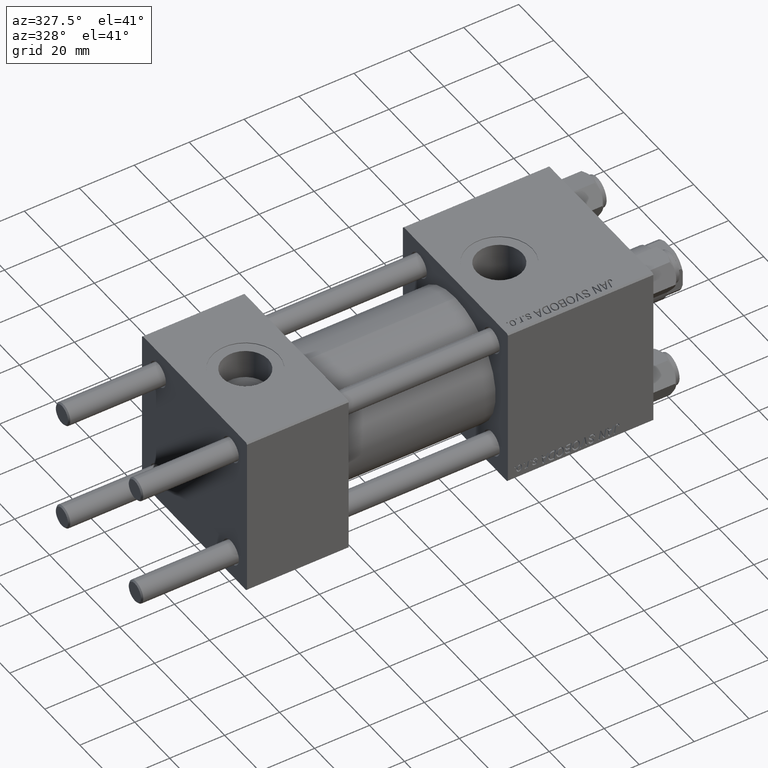
[diagram: clean part render]
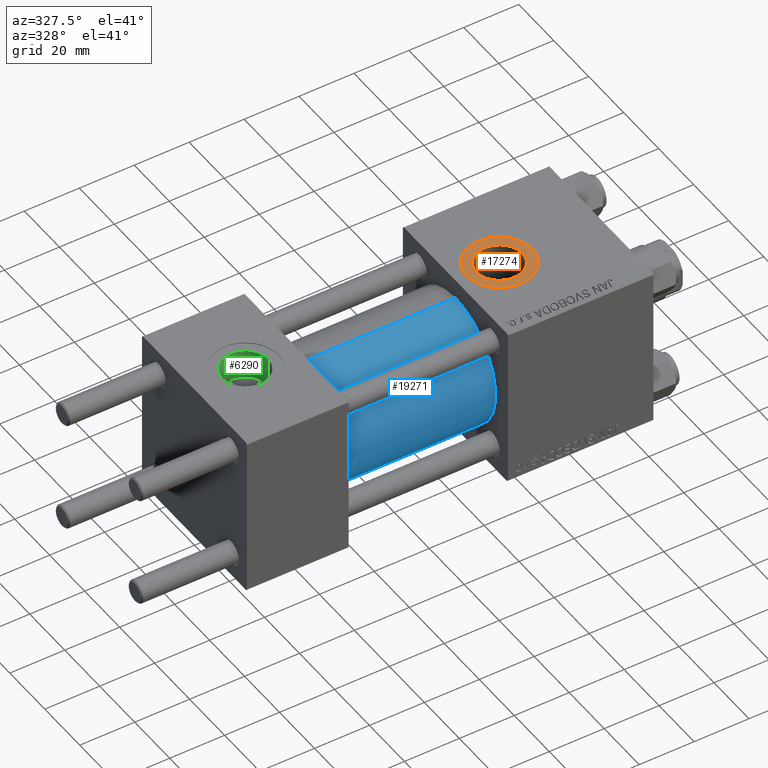
[diagram: same view with three faces highlighted in distinct colors, each labeled with its STEP entity id]
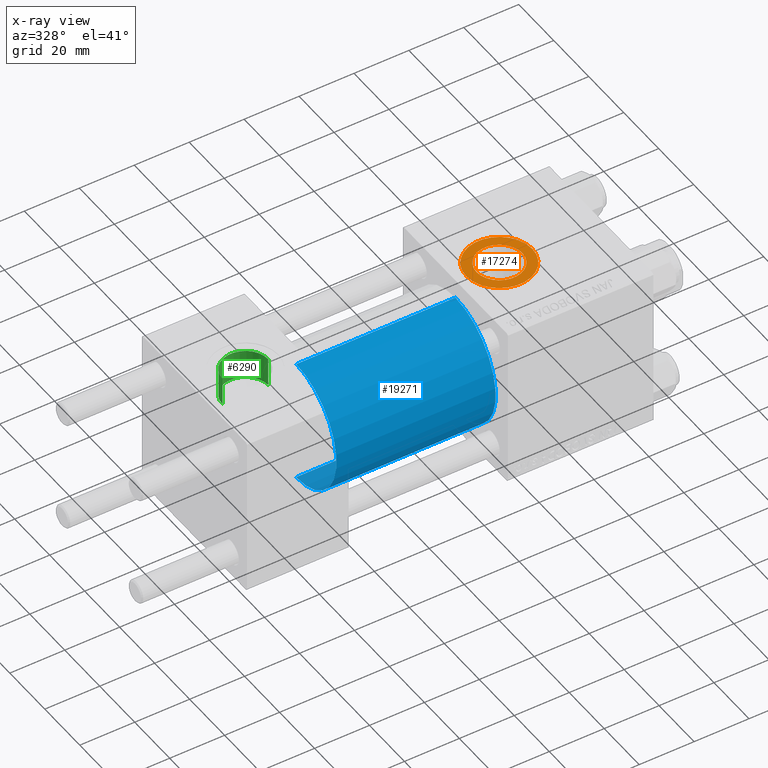
[diagram: x-ray of the same camera — body ghosted, the three highlighted faces saturated]
A machine part, auxiliary view with three faces highlighted in distinct colors.
The next image is the same camera in x-ray (body ghosted, the three faces saturated) — at least one of them is partly hidden behind the body in this view.
Their STEP definitions:

[orange] entity #17274 — the highlighted planar face has unit normal (0, 0, 1).
#87 = FACE_BOUND ( 'NONE', #16427, .T. ) ;
#463 = CARTESIAN_POINT ( 'NONE',  ( 99.00000000000000000, -1.999870792976792017E-15, 29.79999999999999716 ) ) ;
#1519 = DIRECTION ( 'NONE',  ( -0.000000000000000000, -0.000000000000000000, -1.000000000000000000 ) ) ;
#2082 = ORIENTED_EDGE ( 'NONE', *, *, #33465, .T. ) ;
#2379 = EDGE_CURVE ( 'NONE', #41623, #41061, #2391, .T. ) ;
#2391 = CIRCLE ( 'NONE', #30665, 8.330000000000003624 ) ;
#5799 = DIRECTION ( 'NONE',  ( -0.000000000000000000, -0.000000000000000000, -1.000000000000000000 ) ) ;
#9380 = DIRECTION ( 'NONE',  ( 1.000000000000000000, 0.000000000000000000, 0.000000000000000000 ) ) ;
#10417 = ORIENTED_EDGE ( 'NONE', *, *, #2379, .T. ) ;
#15109 = EDGE_CURVE ( 'NONE', #41061, #41623, #43099, .T. ) ;
#15517 = FACE_OUTER_BOUND ( 'NONE', #17781, .T. ) ;
#15715 = ORIENTED_EDGE ( 'NONE', *, *, #27701, .T. ) ;
#16427 = EDGE_LOOP ( 'NONE', ( #31190, #10417 ) ) ;
#16697 = CARTESIAN_POINT ( 'NONE',  ( 111.0000000000000000, -3.469446951953613794E-15, 29.79999999999999716 ) ) ;
#16729 = DIRECTION ( 'NONE',  ( 0.000000000000000000, 0.000000000000000000, 1.000000000000000000 ) ) ;
#17274 = ADVANCED_FACE ( 'NONE', ( #87, #15517 ), #30450, .T. ) ;
#17781 = EDGE_LOOP ( 'NONE', ( #2082, #15715 ) ) ;
#17994 = VERTEX_POINT ( 'NONE', #463 ) ;
#18563 = DIRECTION ( 'NONE',  ( 1.000000000000000000, 0.000000000000000000, -0.000000000000000000 ) ) ;
#21273 = AXIS2_PLACEMENT_3D ( 'NONE', #36902, #5799, #33099 ) ;
#27701 = EDGE_CURVE ( 'NONE', #17994, #48693, #40189, .T. ) ;
#29816 = AXIS2_PLACEMENT_3D ( 'NONE', #32408, #16729, #9380 ) ;
#30450 = PLANE ( 'NONE',  #47238 ) ;
#30665 = AXIS2_PLACEMENT_3D ( 'NONE', #39983, #1519, #35685 ) ;
#31190 = ORIENTED_EDGE ( 'NONE', *, *, #15109, .T. ) ;
#32408 = CARTESIAN_POINT ( 'NONE',  ( 111.0000000000000000, -3.469446951953613794E-15, 29.79999999999999716 ) ) ;
#33099 = DIRECTION ( 'NONE',  ( 1.000000000000000000, 0.000000000000000000, 0.000000000000000000 ) ) ;
#33465 = EDGE_CURVE ( 'NONE', #48693, #17994, #38700, .T. ) ;
#33641 = CARTESIAN_POINT ( 'NONE',  ( 119.3300000000000125, -2.449316168263869821E-15, 29.79999999999999716 ) ) ;
#35175 = DIRECTION ( 'NONE',  ( 0.000000000000000000, 0.000000000000000000, 1.000000000000000000 ) ) ;
#35685 = DIRECTION ( 'NONE',  ( 1.000000000000000000, 0.000000000000000000, 0.000000000000000000 ) ) ;
#36261 = CARTESIAN_POINT ( 'NONE',  ( 102.6700000000000017, -3.469446951953613794E-15, 29.79999999999999716 ) ) ;
#36902 = CARTESIAN_POINT ( 'NONE',  ( 111.0000000000000000, -3.469446951953613794E-15, 29.79999999999999716 ) ) ;
#37206 = CARTESIAN_POINT ( 'NONE',  ( 123.0000000000000000, -3.469446951953613794E-15, 29.79999999999999716 ) ) ;
#38300 = DIRECTION ( 'NONE',  ( 0.000000000000000000, 0.000000000000000000, 1.000000000000000000 ) ) ;
#38700 = CIRCLE ( 'NONE', #29816, 11.99999999999999645 ) ;
#38991 = DIRECTION ( 'NONE',  ( 1.000000000000000000, 0.000000000000000000, 0.000000000000000000 ) ) ;
#39983 = CARTESIAN_POINT ( 'NONE',  ( 111.0000000000000000, -3.469446951953613794E-15, 29.79999999999999716 ) ) ;
#40189 = CIRCLE ( 'NONE', #47441, 11.99999999999999645 ) ;
#41061 = VERTEX_POINT ( 'NONE', #36261 ) ;
#41623 = VERTEX_POINT ( 'NONE', #33641 ) ;
#43099 = CIRCLE ( 'NONE', #21273, 8.330000000000003624 ) ;
#46395 = CARTESIAN_POINT ( 'NONE',  ( 111.0000000000000000, -3.469446951953613794E-15, 29.79999999999999716 ) ) ;
#47238 = AXIS2_PLACEMENT_3D ( 'NONE', #46395, #38300, #18563 ) ;
#47441 = AXIS2_PLACEMENT_3D ( 'NONE', #16697, #35175, #38991 ) ;
#48693 = VERTEX_POINT ( 'NONE', #37206 ) ;

[blue] entity #19271 — the highlighted cylindrical surface (partial cylindrical patch) has radius 23 mm, axis along (-1, -0, -0).
#59 = CARTESIAN_POINT ( 'NONE',  ( 95.00000000000000000, 0.000000000000000000, 23.00000000000000000 ) ) ;
#414 = DIRECTION ( 'NONE',  ( 1.000000000000000000, 0.000000000000000000, 0.000000000000000000 ) ) ;
#871 = CARTESIAN_POINT ( 'NONE',  ( 37.00000000000000000, 0.000000000000000000, 0.000000000000000000 ) ) ;
#1164 = CARTESIAN_POINT ( 'NONE',  ( 37.00000000000000000, 2.816687638038911957E-15, -23.00000000000000000 ) ) ;
#1176 = DIRECTION ( 'NONE',  ( -1.000000000000000000, -0.000000000000000000, -0.000000000000000000 ) ) ;
#3700 = ORIENTED_EDGE ( 'NONE', *, *, #49554, .T. ) ;
#4083 = EDGE_LOOP ( 'NONE', ( #25712, #7459, #9807, #3700 ) ) ;
#4475 = CARTESIAN_POINT ( 'NONE',  ( 95.00000000000000000, 0.000000000000000000, 0.000000000000000000 ) ) ;
#4917 = DIRECTION ( 'NONE',  ( 0.000000000000000000, 0.000000000000000000, 1.000000000000000000 ) ) ;
#5031 = AXIS2_PLACEMENT_3D ( 'NONE', #4475, #414, #8006 ) ;
#5992 = VECTOR ( 'NONE', #22035, 1000.000000000000000 ) ;
#7459 = ORIENTED_EDGE ( 'NONE', *, *, #11630, .F. ) ;
#8006 = DIRECTION ( 'NONE',  ( 0.000000000000000000, 0.000000000000000000, -1.000000000000000000 ) ) ;
#8332 = VERTEX_POINT ( 'NONE', #1164 ) ;
#9114 = CARTESIAN_POINT ( 'NONE',  ( 95.00000000000000000, 2.816687638038911957E-15, -23.00000000000000000 ) ) ;
#9807 = ORIENTED_EDGE ( 'NONE', *, *, #15519, .T. ) ;
#11135 = CARTESIAN_POINT ( 'NONE',  ( 95.00000000000000000, 2.816687638038911957E-15, -23.00000000000000000 ) ) ;
#11630 = EDGE_CURVE ( 'NONE', #15903, #42302, #12271, .T. ) ;
#12271 = CIRCLE ( 'NONE', #5031, 23.00000000000000000 ) ;
#13996 = VECTOR ( 'NONE', #29732, 1000.000000000000000 ) ;
#14141 = AXIS2_PLACEMENT_3D ( 'NONE', #35836, #1176, #32026 ) ;
#15519 = EDGE_CURVE ( 'NONE', #15903, #25713, #44690, .T. ) ;
#15903 = VERTEX_POINT ( 'NONE', #59 ) ;
#17025 = EDGE_CURVE ( 'NONE', #42302, #8332, #37715, .T. ) ;
#19271 = ADVANCED_FACE ( 'NONE', ( #29237 ), #24189, .T. ) ;
#22035 = DIRECTION ( 'NONE',  ( -1.000000000000000000, -0.000000000000000000, -0.000000000000000000 ) ) ;
#24189 = CYLINDRICAL_SURFACE ( 'NONE', #14141, 23.00000000000000000 ) ;
#24952 = CARTESIAN_POINT ( 'NONE',  ( 95.00000000000000000, 0.000000000000000000, 23.00000000000000000 ) ) ;
#25712 = ORIENTED_EDGE ( 'NONE', *, *, #17025, .F. ) ;
#25713 = VERTEX_POINT ( 'NONE', #43077 ) ;
#29237 = FACE_OUTER_BOUND ( 'NONE', #4083, .T. ) ;
#29732 = DIRECTION ( 'NONE',  ( -1.000000000000000000, -0.000000000000000000, -0.000000000000000000 ) ) ;
#32026 = DIRECTION ( 'NONE',  ( 0.000000000000000000, 0.000000000000000000, 1.000000000000000000 ) ) ;
#35836 = CARTESIAN_POINT ( 'NONE',  ( 95.00000000000000000, 0.000000000000000000, 0.000000000000000000 ) ) ;
#37715 = LINE ( 'NONE', #11135, #5992 ) ;
#39584 = DIRECTION ( 'NONE',  ( 1.000000000000000000, -0.000000000000000000, 0.000000000000000000 ) ) ;
#42302 = VERTEX_POINT ( 'NONE', #9114 ) ;
#43077 = CARTESIAN_POINT ( 'NONE',  ( 37.00000000000000000, 0.000000000000000000, 23.00000000000000000 ) ) ;
#44690 = LINE ( 'NONE', #24952, #13996 ) ;
#45912 = CIRCLE ( 'NONE', #49941, 23.00000000000000000 ) ;
#49554 = EDGE_CURVE ( 'NONE', #25713, #8332, #45912, .T. ) ;
#49941 = AXIS2_PLACEMENT_3D ( 'NONE', #871, #39584, #4917 ) ;

[green] entity #6290 — the highlighted cylindrical surface (edge-blend (fillet) strip) has radius 8.33 mm, axis along (0, 0, 1).
#1302 = EDGE_CURVE ( 'NONE', #49623, #25362, #19228, .T. ) ;
#1382 = CARTESIAN_POINT ( 'NONE',  ( 18.50000000000000000, -3.469446951953614978E-15, 19.19999999999999574 ) ) ;
#2127 = CYLINDRICAL_SURFACE ( 'NONE', #29084, 8.330000000000000071 ) ;
#2234 = EDGE_CURVE ( 'NONE', #25747, #25362, #25009, .T. ) ;
#3427 = CIRCLE ( 'NONE', #9098, 8.330000000000000071 ) ;
#3686 = LINE ( 'NONE', #38603, #8271 ) ;
#4317 = DIRECTION ( 'NONE',  ( -0.000000000000000000, -0.000000000000000000, 1.000000000000000000 ) ) ;
#5688 = FACE_OUTER_BOUND ( 'NONE', #9923, .T. ) ;
#6290 = ADVANCED_FACE ( 'NONE', ( #5688 ), #2127, .F. ) ;
#6618 = DIRECTION ( 'NONE',  ( 0.000000000000000000, 0.000000000000000000, 1.000000000000000000 ) ) ;
#7052 = VERTEX_POINT ( 'NONE', #11337 ) ;
#8096 = CARTESIAN_POINT ( 'NONE',  ( 10.16999999999999638, -2.449316168263869821E-15, 19.19999999999999574 ) ) ;
#8271 = VECTOR ( 'NONE', #43160, 1000.000000000000000 ) ;
#9098 = AXIS2_PLACEMENT_3D ( 'NONE', #33593, #15858, #11556 ) ;
#9923 = EDGE_LOOP ( 'NONE', ( #40746, #46336, #37385, #46972 ) ) ;
#11224 = VECTOR ( 'NONE', #4317, 1000.000000000000000 ) ;
#11337 = CARTESIAN_POINT ( 'NONE',  ( 26.82999999999999829, -3.469446951953614978E-15, 19.19999999999999574 ) ) ;
#11556 = DIRECTION ( 'NONE',  ( 1.000000000000000000, 0.000000000000000000, 0.000000000000000000 ) ) ;
#12476 = EDGE_CURVE ( 'NONE', #7052, #49623, #3427, .T. ) ;
#15858 = DIRECTION ( 'NONE',  ( 0.000000000000000000, 0.000000000000000000, 1.000000000000000000 ) ) ;
#17065 = DIRECTION ( 'NONE',  ( -0.000000000000000000, -0.000000000000000000, 1.000000000000000000 ) ) ;
#17109 = CARTESIAN_POINT ( 'NONE',  ( 10.16999999999999638, -2.449316168263869821E-15, 29.79999999999999716 ) ) ;
#19228 = LINE ( 'NONE', #8096, #11224 ) ;
#21775 = AXIS2_PLACEMENT_3D ( 'NONE', #41292, #6618, #22047 ) ;
#22047 = DIRECTION ( 'NONE',  ( 1.000000000000000000, 0.000000000000000000, 0.000000000000000000 ) ) ;
#25009 = CIRCLE ( 'NONE', #21775, 8.330000000000000071 ) ;
#25362 = VERTEX_POINT ( 'NONE', #17109 ) ;
#25747 = VERTEX_POINT ( 'NONE', #32168 ) ;
#29084 = AXIS2_PLACEMENT_3D ( 'NONE', #1382, #17065, #44396 ) ;
#32168 = CARTESIAN_POINT ( 'NONE',  ( 26.82999999999999829, -3.469446951953614978E-15, 29.79999999999999716 ) ) ;
#33593 = CARTESIAN_POINT ( 'NONE',  ( 18.50000000000000000, -3.469446951953614978E-15, 19.19999999999999574 ) ) ;
#37385 = ORIENTED_EDGE ( 'NONE', *, *, #45112, .T. ) ;
#38603 = CARTESIAN_POINT ( 'NONE',  ( 26.82999999999999829, -3.469446951953614978E-15, 19.19999999999999574 ) ) ;
#40746 = ORIENTED_EDGE ( 'NONE', *, *, #1302, .F. ) ;
#41292 = CARTESIAN_POINT ( 'NONE',  ( 18.50000000000000000, -3.469446951953614978E-15, 29.79999999999999716 ) ) ;
#42564 = CARTESIAN_POINT ( 'NONE',  ( 10.16999999999999638, -2.449316168263869821E-15, 19.19999999999999574 ) ) ;
#43160 = DIRECTION ( 'NONE',  ( -0.000000000000000000, -0.000000000000000000, 1.000000000000000000 ) ) ;
#44396 = DIRECTION ( 'NONE',  ( 1.000000000000000000, 0.000000000000000000, 0.000000000000000000 ) ) ;
#45112 = EDGE_CURVE ( 'NONE', #7052, #25747, #3686, .T. ) ;
#46336 = ORIENTED_EDGE ( 'NONE', *, *, #12476, .F. ) ;
#46972 = ORIENTED_EDGE ( 'NONE', *, *, #2234, .T. ) ;
#49623 = VERTEX_POINT ( 'NONE', #42564 ) ;